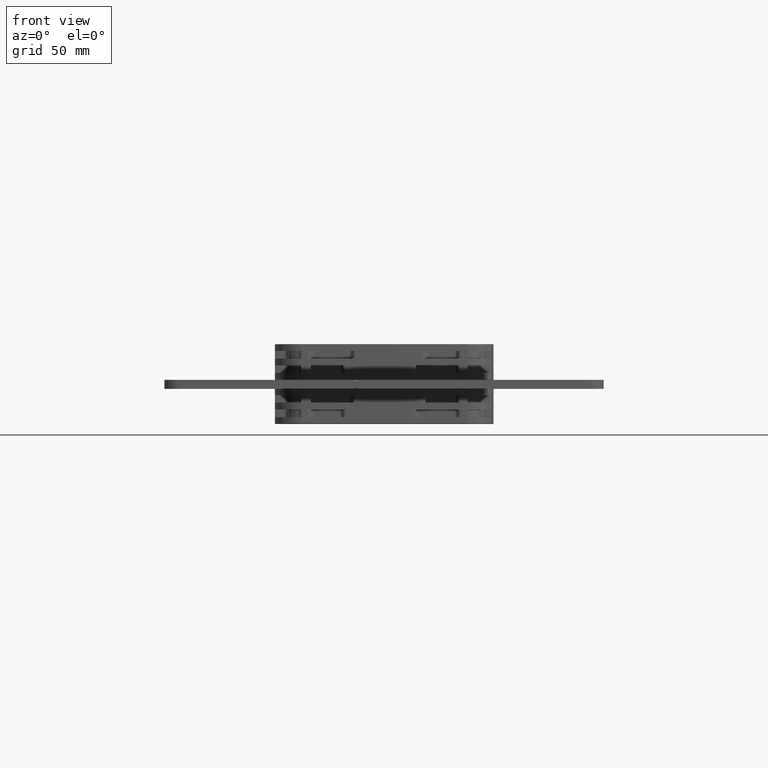
[diagram: clean part render]
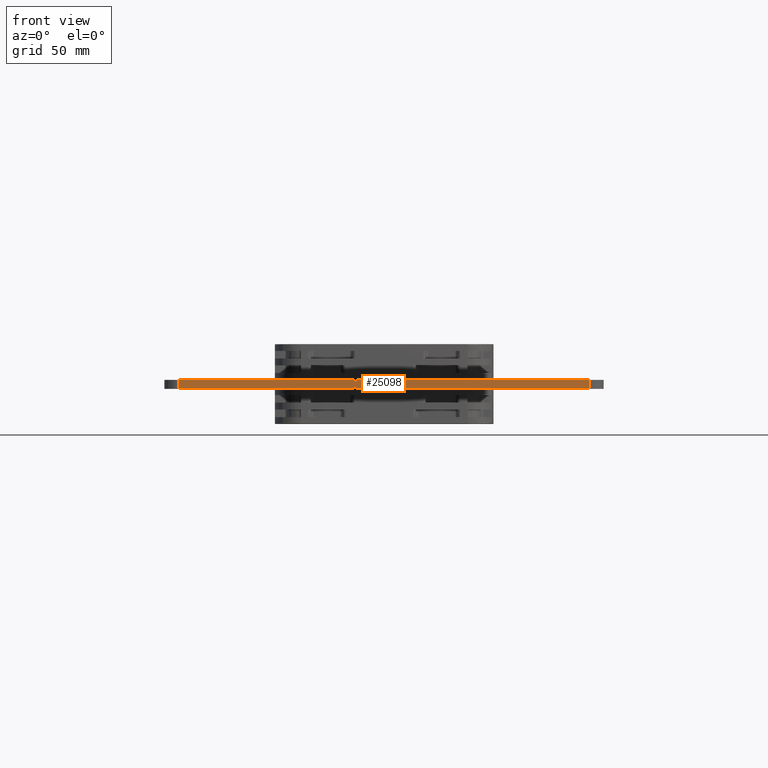
[diagram: same view with one face highlighted and labeled with its STEP entity id]
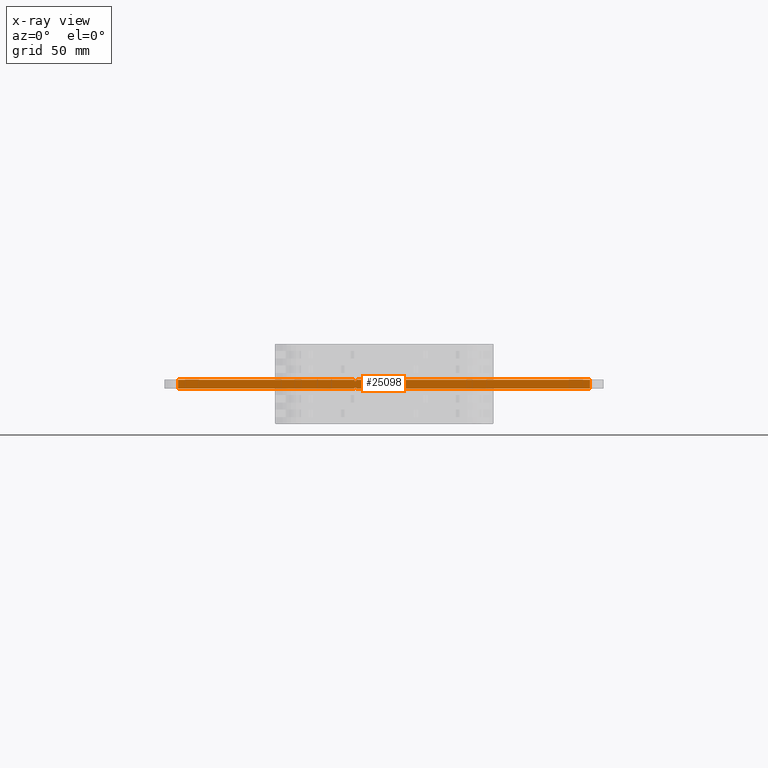
[diagram: x-ray of the same camera — body ghosted, the highlighted face saturated]
A machine part, front view. The second image highlights one B-rep face of the part: STEP entity #25098.
The next image is the same camera in x-ray: the body ghosted, the highlighted face saturated — about 0% of this face is hidden behind the body in this view.
In plain terms, the highlighted planar face has unit normal (0, -1, 0).
Its self-contained STEP definition (entity closure, byte-faithful):
#22866=CARTESIAN_POINT('',(380.259073085387630,259.007604351443210,0.0));
#22867=VERTEX_POINT('',#22866);
#22875=CARTESIAN_POINT('',(380.259073085387630,259.007604351443210,6.500000000000000));
#22876=VERTEX_POINT('',#22875);
#22877=CARTESIAN_POINT('',(380.259073085387630,259.007604351443210,0.0));
#22878=DIRECTION('',(0.0,0.0,1.0));
#22879=VECTOR('',#22878,6.500000000000000);
#22880=LINE('',#22877,#22879);
#22881=EDGE_CURVE('',#22867,#22876,#22880,.T.);
#23990=CARTESIAN_POINT('',(508.155519694794240,259.007604351443210,0.853553390593276));
#23991=VERTEX_POINT('',#23990);
#24000=CARTESIAN_POINT('',(508.009073085387510,259.007604351443210,0.500000000000000));
#24001=VERTEX_POINT('',#24000);
#24002=CARTESIAN_POINT('',(508.509073085387510,259.007604351443210,0.500000000000000));
#24003=DIRECTION('',(0.0,-1.000000000000000,0.0));
#24004=DIRECTION('',(-0.707106781186527,0.0,0.707106781186568));
#24005=AXIS2_PLACEMENT_3D('',#24002,#24003,#24004);
#24006=CIRCLE('',#24005,0.500000000000000);
#24007=EDGE_CURVE('',#23991,#24001,#24006,.T.);
#24064=CARTESIAN_POINT('',(509.362626475980900,259.007604351443210,0.853553390593276));
#24065=VERTEX_POINT('',#24064);
#24073=CARTESIAN_POINT('',(509.509073085387680,259.007604351443210,0.500000000000000));
#24074=VERTEX_POINT('',#24073);
#24081=CARTESIAN_POINT('',(509.009073085387630,259.007604351443210,0.500000000000000));
#24082=DIRECTION('',(0.0,-1.000000000000000,0.0));
#24083=DIRECTION('',(0.707106781186527,0.0,0.707106781186568));
#24084=AXIS2_PLACEMENT_3D('',#24081,#24082,#24083);
#24085=CIRCLE('',#24084,0.500000000000000);
#24086=EDGE_CURVE('',#24074,#24065,#24085,.T.);
#24096=CARTESIAN_POINT('',(509.362626475980850,259.007604351443210,5.646446609406725));
#24097=VERTEX_POINT('',#24096);
#24106=CARTESIAN_POINT('',(509.509073085387460,259.007604351443210,6.000000000000002));
#24107=VERTEX_POINT('',#24106);
#24108=CARTESIAN_POINT('',(509.009073085387570,259.007604351443210,6.000000000000002));
#24109=DIRECTION('',(0.0,-1.000000000000000,0.0));
#24110=DIRECTION('',(0.707106781186527,0.0,-0.707106781186568));
#24111=AXIS2_PLACEMENT_3D('',#24108,#24109,#24110);
#24112=CIRCLE('',#24111,0.500000000000000);
#24113=EDGE_CURVE('',#24097,#24107,#24112,.T.);
#24170=CARTESIAN_POINT('',(508.155519694794240,259.007604351443210,5.646446609406725));
#24171=VERTEX_POINT('',#24170);
#24179=CARTESIAN_POINT('',(508.009073085387510,259.007604351443210,6.000000000000002));
#24180=VERTEX_POINT('',#24179);
#24187=CARTESIAN_POINT('',(508.509073085387510,259.007604351443210,6.000000000000002));
#24188=DIRECTION('',(0.0,-1.000000000000000,0.0));
#24189=DIRECTION('',(-0.707106781186527,0.0,-0.707106781186568));
#24190=AXIS2_PLACEMENT_3D('',#24187,#24188,#24189);
#24191=CIRCLE('',#24190,0.500000000000000);
#24192=EDGE_CURVE('',#24180,#24171,#24191,.T.);
#24202=CARTESIAN_POINT('',(509.655519694794290,259.007604351443210,0.146446609406713));
#24203=VERTEX_POINT('',#24202);
#24212=CARTESIAN_POINT('',(510.009073085387570,259.007604351443210,0.500000000000000));
#24213=DIRECTION('',(0.0,1.0,0.0));
#24214=DIRECTION('',(-0.707106781186527,0.0,-0.707106781186568));
#24215=AXIS2_PLACEMENT_3D('',#24212,#24213,#24214);
#24216=CIRCLE('',#24215,0.500000000000000);
#24217=EDGE_CURVE('',#24203,#24074,#24216,.T.);
#24260=CARTESIAN_POINT('',(507.862626475980850,259.007604351443210,0.146446609406724));
#24261=VERTEX_POINT('',#24260);
#24270=CARTESIAN_POINT('',(507.509073085387570,259.007604351443210,0.500000000000000));
#24271=DIRECTION('',(0.0,1.0,0.0));
#24272=DIRECTION('',(0.707106781186527,0.0,-0.707106781186568));
#24273=AXIS2_PLACEMENT_3D('',#24270,#24271,#24272);
#24274=CIRCLE('',#24273,0.500000000000000);
#24275=EDGE_CURVE('',#24001,#24261,#24274,.T.);
#24285=CARTESIAN_POINT('',(507.862626475980850,259.007604351443210,6.353553390593278));
#24286=VERTEX_POINT('',#24285);
#24295=CARTESIAN_POINT('',(507.509073085387570,259.007604351443210,6.000000000000001));
#24296=DIRECTION('',(0.0,1.000000000000000,0.0));
#24297=DIRECTION('',(0.707106781186527,0.0,0.707106781186568));
#24298=AXIS2_PLACEMENT_3D('',#24295,#24296,#24297);
#24299=CIRCLE('',#24298,0.500000000000000);
#24300=EDGE_CURVE('',#24286,#24180,#24299,.T.);
#24343=CARTESIAN_POINT('',(509.655519694794120,259.007604351443210,6.353553390593278));
#24344=VERTEX_POINT('',#24343);
#24353=CARTESIAN_POINT('',(510.009073085387400,259.007604351443210,6.000000000000001));
#24354=DIRECTION('',(0.0,1.000000000000000,0.0));
#24355=DIRECTION('',(-0.707106781186527,0.0,0.707106781186568));
#24356=AXIS2_PLACEMENT_3D('',#24353,#24354,#24355);
#24357=CIRCLE('',#24356,0.500000000000000);
#24358=EDGE_CURVE('',#24107,#24344,#24357,.T.);
#24477=CARTESIAN_POINT('',(510.009073085387400,259.007604351443210,6.500000000000000));
#24478=VERTEX_POINT('',#24477);
#24479=CARTESIAN_POINT('',(510.009073085387400,259.007604351443210,6.000000000000001));
#24480=DIRECTION('',(0.0,1.000000000000000,0.0));
#24481=DIRECTION('',(-0.707106781186527,0.0,0.707106781186568));
#24482=AXIS2_PLACEMENT_3D('',#24479,#24480,#24481);
#24483=CIRCLE('',#24482,0.500000000000000);
#24484=EDGE_CURVE('',#24344,#24478,#24483,.T.);
#24536=CARTESIAN_POINT('',(507.509073085387570,259.007604351443210,6.500000000000000));
#24537=VERTEX_POINT('',#24536);
#24544=CARTESIAN_POINT('',(507.509073085387570,259.007604351443210,6.000000000000001));
#24545=DIRECTION('',(0.0,1.000000000000000,0.0));
#24546=DIRECTION('',(0.707106781186527,0.0,0.707106781186568));
#24547=AXIS2_PLACEMENT_3D('',#24544,#24545,#24546);
#24548=CIRCLE('',#24547,0.500000000000000);
#24549=EDGE_CURVE('',#24537,#24286,#24548,.T.);
#24560=CARTESIAN_POINT('',(507.509073085387570,259.007604351443210,0.0));
#24561=VERTEX_POINT('',#24560);
#24562=CARTESIAN_POINT('',(507.509073085387570,259.007604351443210,0.500000000000000));
#24563=DIRECTION('',(0.0,1.0,0.0));
#24564=DIRECTION('',(0.707106781186527,0.0,-0.707106781186568));
#24565=AXIS2_PLACEMENT_3D('',#24562,#24563,#24564);
#24566=CIRCLE('',#24565,0.500000000000000);
#24567=EDGE_CURVE('',#24261,#24561,#24566,.T.);
#24619=CARTESIAN_POINT('',(510.009073085387570,259.007604351443210,0.0));
#24620=VERTEX_POINT('',#24619);
#24627=CARTESIAN_POINT('',(510.009073085387570,259.007604351443210,0.500000000000000));
#24628=DIRECTION('',(0.0,1.0,0.0));
#24629=DIRECTION('',(-0.707106781186527,0.0,-0.707106781186568));
#24630=AXIS2_PLACEMENT_3D('',#24627,#24628,#24629);
#24631=CIRCLE('',#24630,0.500000000000000);
#24632=EDGE_CURVE('',#24620,#24203,#24631,.T.);
#24645=CARTESIAN_POINT('',(380.259073085387630,259.007604351443210,0.0));
#24646=DIRECTION('',(1.0,0.0,0.0));
#24647=VECTOR('',#24646,127.249999999999940);
#24648=LINE('',#24645,#24647);
#24649=EDGE_CURVE('',#22867,#24561,#24648,.T.);
#24700=CARTESIAN_POINT('',(678.759073085387740,259.007604351443210,0.0));
#24701=VERTEX_POINT('',#24700);
#24709=CARTESIAN_POINT('',(510.009073085387570,259.007604351443210,0.0));
#24710=DIRECTION('',(1.0,0.0,0.0));
#24711=VECTOR('',#24710,168.750000000000170);
#24712=LINE('',#24709,#24711);
#24713=EDGE_CURVE('',#24620,#24701,#24712,.T.);
#25008=CARTESIAN_POINT('',(688.759073085387740,259.007604351443210,0.0));
#25009=DIRECTION('',(0.0,-1.0,0.0));
#25010=DIRECTION('',(0.0,0.0,-1.0));
#25011=AXIS2_PLACEMENT_3D('',#25008,#25009,#25010);
#25012=PLANE('',#25011);
#25013=ORIENTED_EDGE('',*,*,#24358,.F.);
#25014=ORIENTED_EDGE('',*,*,#24113,.F.);
#25015=CARTESIAN_POINT('',(509.009073085387570,259.007604351443210,5.500000000000002));
#25016=VERTEX_POINT('',#25015);
#25017=CARTESIAN_POINT('',(509.009073085387570,259.007604351443210,6.000000000000002));
#25018=DIRECTION('',(0.0,-1.000000000000000,0.0));
#25019=DIRECTION('',(0.707106781186527,0.0,-0.707106781186568));
#25020=AXIS2_PLACEMENT_3D('',#25017,#25018,#25019);
#25021=CIRCLE('',#25020,0.500000000000000);
#25022=EDGE_CURVE('',#25016,#24097,#25021,.T.);
#25023=ORIENTED_EDGE('',*,*,#25022,.F.);
#25024=CARTESIAN_POINT('',(508.509073085387510,259.007604351443210,5.500000000000002));
#25025=VERTEX_POINT('',#25024);
#25026=CARTESIAN_POINT('',(509.009073085387570,259.007604351443210,5.500000000000002));
#25027=DIRECTION('',(-1.0,0.0,0.0));
#25028=VECTOR('',#25027,0.500000000000057);
#25029=LINE('',#25026,#25028);
#25030=EDGE_CURVE('',#25016,#25025,#25029,.T.);
#25031=ORIENTED_EDGE('',*,*,#25030,.T.);
#25032=CARTESIAN_POINT('',(508.509073085387510,259.007604351443210,6.000000000000002));
#25033=DIRECTION('',(0.0,-1.000000000000000,0.0));
#25034=DIRECTION('',(-0.707106781186527,0.0,-0.707106781186568));
#25035=AXIS2_PLACEMENT_3D('',#25032,#25033,#25034);
#25036=CIRCLE('',#25035,0.500000000000000);
#25037=EDGE_CURVE('',#24171,#25025,#25036,.T.);
#25038=ORIENTED_EDGE('',*,*,#25037,.F.);
#25039=ORIENTED_EDGE('',*,*,#24192,.F.);
#25040=ORIENTED_EDGE('',*,*,#24300,.F.);
#25041=ORIENTED_EDGE('',*,*,#24549,.F.);
#25042=CARTESIAN_POINT('',(507.509073085387570,259.007604351443210,6.500000000000000));
#25043=DIRECTION('',(-1.0,0.0,0.0));
#25044=VECTOR('',#25043,127.249999999999940);
#25045=LINE('',#25042,#25044);
#25046=EDGE_CURVE('',#24537,#22876,#25045,.T.);
#25047=ORIENTED_EDGE('',*,*,#25046,.T.);
#25048=ORIENTED_EDGE('',*,*,#22881,.F.);
#25049=ORIENTED_EDGE('',*,*,#24649,.T.);
#25050=ORIENTED_EDGE('',*,*,#24567,.F.);
#25051=ORIENTED_EDGE('',*,*,#24275,.F.);
#25052=ORIENTED_EDGE('',*,*,#24007,.F.);
#25053=CARTESIAN_POINT('',(508.509073085387510,259.007604351443210,1.0));
#25054=VERTEX_POINT('',#25053);
#25055=CARTESIAN_POINT('',(508.509073085387510,259.007604351443210,0.500000000000000));
#25056=DIRECTION('',(0.0,-1.000000000000000,0.0));
#25057=DIRECTION('',(-0.707106781186527,0.0,0.707106781186568));
#25058=AXIS2_PLACEMENT_3D('',#25055,#25056,#25057);
#25059=CIRCLE('',#25058,0.500000000000000);
#25060=EDGE_CURVE('',#25054,#23991,#25059,.T.);
#25061=ORIENTED_EDGE('',*,*,#25060,.F.);
#25062=CARTESIAN_POINT('',(509.009073085387630,259.007604351443210,1.0));
#25063=VERTEX_POINT('',#25062);
#25064=CARTESIAN_POINT('',(508.509073085387510,259.007604351443210,1.0));
#25065=DIRECTION('',(1.0,0.0,0.0));
#25066=VECTOR('',#25065,0.500000000000114);
#25067=LINE('',#25064,#25066);
#25068=EDGE_CURVE('',#25054,#25063,#25067,.T.);
#25069=ORIENTED_EDGE('',*,*,#25068,.T.);
#25070=CARTESIAN_POINT('',(509.009073085387630,259.007604351443210,0.500000000000000));
#25071=DIRECTION('',(0.0,-1.000000000000000,0.0));
#25072=DIRECTION('',(0.707106781186527,0.0,0.707106781186568));
#25073=AXIS2_PLACEMENT_3D('',#25070,#25071,#25072);
#25074=CIRCLE('',#25073,0.500000000000000);
#25075=EDGE_CURVE('',#24065,#25063,#25074,.T.);
#25076=ORIENTED_EDGE('',*,*,#25075,.F.);
#25077=ORIENTED_EDGE('',*,*,#24086,.F.);
#25078=ORIENTED_EDGE('',*,*,#24217,.F.);
#25079=ORIENTED_EDGE('',*,*,#24632,.F.);
#25080=ORIENTED_EDGE('',*,*,#24713,.T.);
#25081=CARTESIAN_POINT('',(678.759073085387740,259.007604351443210,6.500000000000000));
#25082=VERTEX_POINT('',#25081);
#25083=CARTESIAN_POINT('',(678.759073085387740,259.007604351443210,6.500000000000000));
#25084=DIRECTION('',(0.0,0.0,-1.0));
#25085=VECTOR('',#25084,6.500000000000000);
#25086=LINE('',#25083,#25085);
#25087=EDGE_CURVE('',#25082,#24701,#25086,.T.);
#25088=ORIENTED_EDGE('',*,*,#25087,.F.);
#25089=CARTESIAN_POINT('',(678.759073085387740,259.007604351443210,6.500000000000000));
#25090=DIRECTION('',(-1.0,0.0,0.0));
#25091=VECTOR('',#25090,168.750000000000340);
#25092=LINE('',#25089,#25091);
#25093=EDGE_CURVE('',#25082,#24478,#25092,.T.);
#25094=ORIENTED_EDGE('',*,*,#25093,.T.);
#25095=ORIENTED_EDGE('',*,*,#24484,.F.);
#25096=EDGE_LOOP('',(#25013,#25014,#25023,#25031,#25038,#25039,#25040,#25041,#25047,#25048,#25049,#25050,#25051,#25052,#25061,#25069,#25076,#25077,#25078,#25079,#25080,#25088,#25094,#25095));
#25097=FACE_OUTER_BOUND('',#25096,.T.);
#25098=ADVANCED_FACE('',(#25097),#25012,.T.);